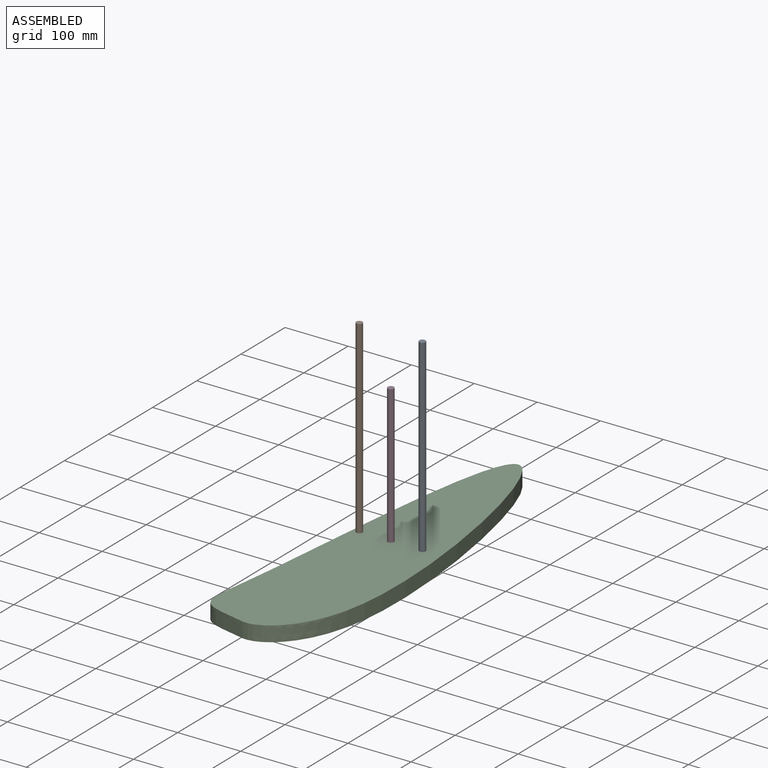
[diagram: assembled view]
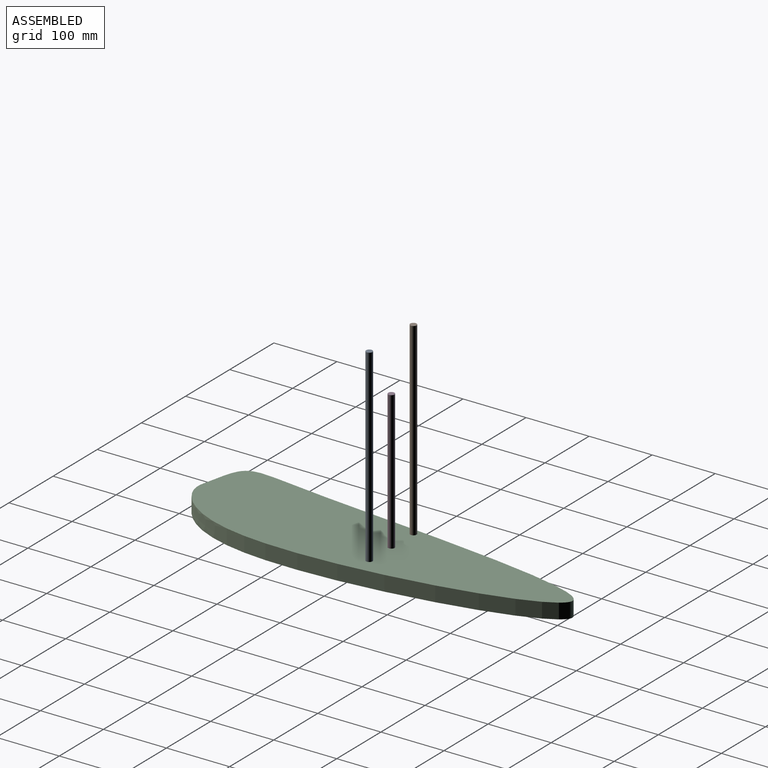
[diagram: assembled view, second angle]
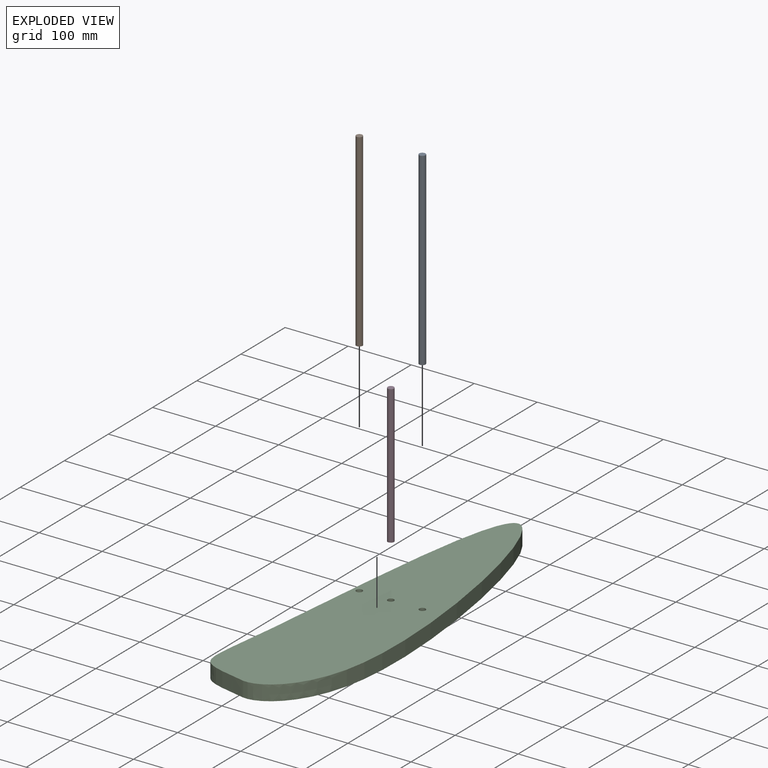
[diagram: exploded view]
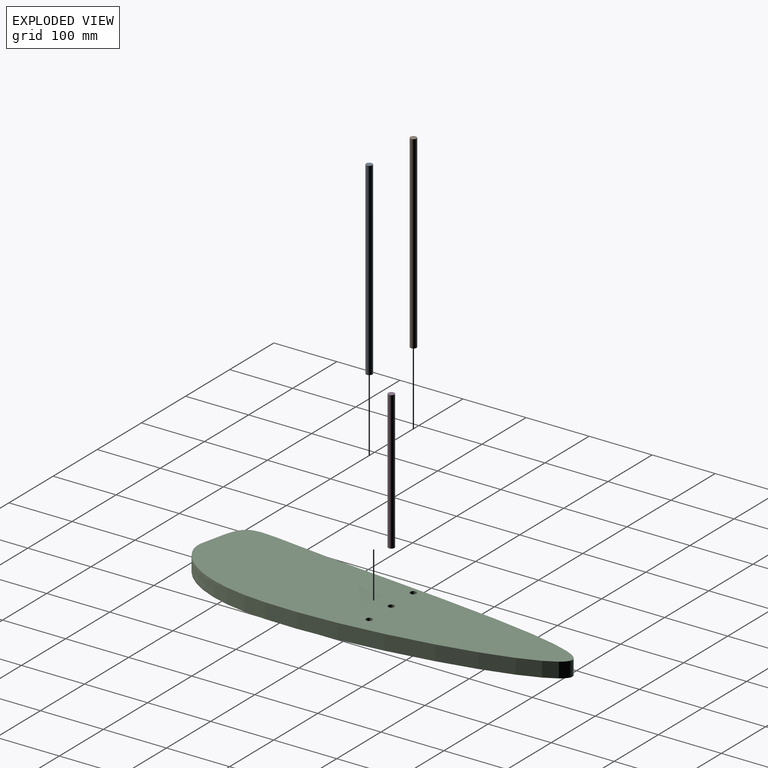
[diagram: exploded view, second angle]
ASSEMBLY  parts=4 mates=3
PART A: 3 faces, bbox 10x10x300 mm
  f0: cylinder r=5mm len=300mm, axis (0,0,-1), area 9424.8mm2, adj f1,f2
  f1: plane 10x10mm, normal (0,0,1), area 78.5mm2, adj f0
  f2: plane 10x10mm, normal (0,0,-1), area 78.5mm2, adj f0
PART B: same geometry as A
PART C: 7 faces, bbox 208.5x611.8x24 mm
  f0: extruded ~601.09x164.91mm, area 19553.1mm2, adj f1,f2,f3
  f1: extruded ~495.42x85.59mm, area 12333.7mm2, adj f0,f2,f3
  f2: plane 611.78x208.53mm, normal (0,0,1), area 73221.3mm2, adj f0,f1,f4,f5,f6
  f3: plane 611.78x208.53mm, normal (0,0,-1), area 73221.3mm2, adj f0,f1,f4,f5,f6
  f4: cylinder r=5mm len=24mm, axis (0,0,1), area 754mm2, adj f2,f3
  f5: cylinder r=5mm len=24mm, axis (0,0,1), area 754mm2, adj f2,f3
  f6: cylinder r=5mm len=24mm, axis (0,0,1), area 754mm2, adj f2,f3
PART D: 3 faces, bbox 10x10x220 mm
  f0: cylinder r=5mm len=220mm, axis (0,0,-1), area 6911.5mm2, adj f1,f2
  f1: plane 10x10mm, normal (0,0,1), area 78.5mm2, adj f0
  f2: plane 10x10mm, normal (0,0,-1), area 78.5mm2, adj f0
PLACE A t=(-14.16,231.68,16.23)mm
PLACE B t=(-114.16,231.68,16.23)mm
PLACE C t=(-64.16,45.2,-7.77)mm
PLACE D t=(-64.16,231.68,16.23)mm
MATE fastened B.f0 <-> C.f4  axis (0,0,-1) through (-114.16,231.68,16.23)mm
MATE fastened D.f0 <-> C.f5  axis (0,0,-1) through (-64.16,231.68,16.23)mm
MATE fastened A.f0 <-> C.f6  axis (0,0,-1) through (-14.16,231.68,16.23)mm
